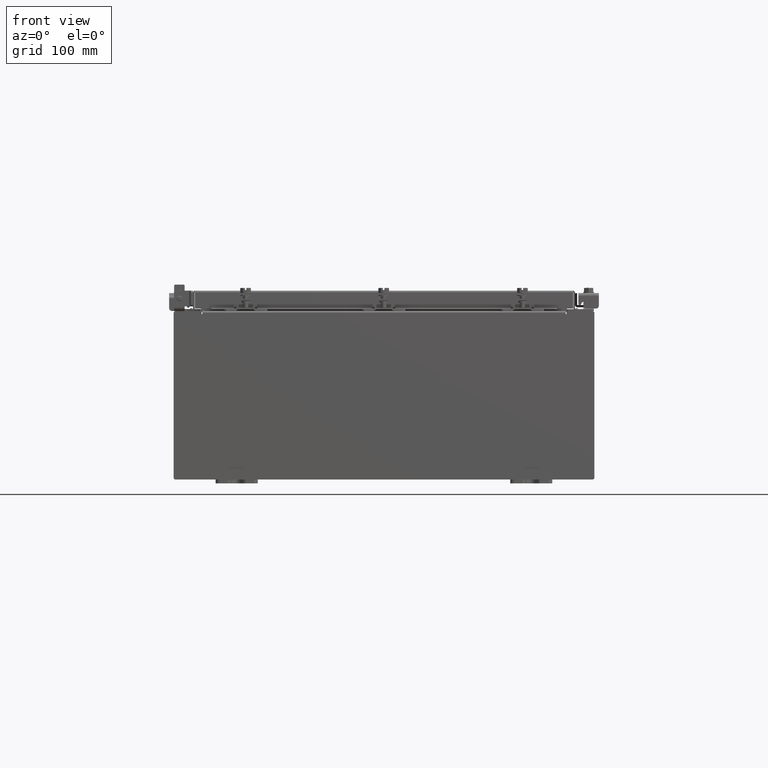
[diagram: clean part render]
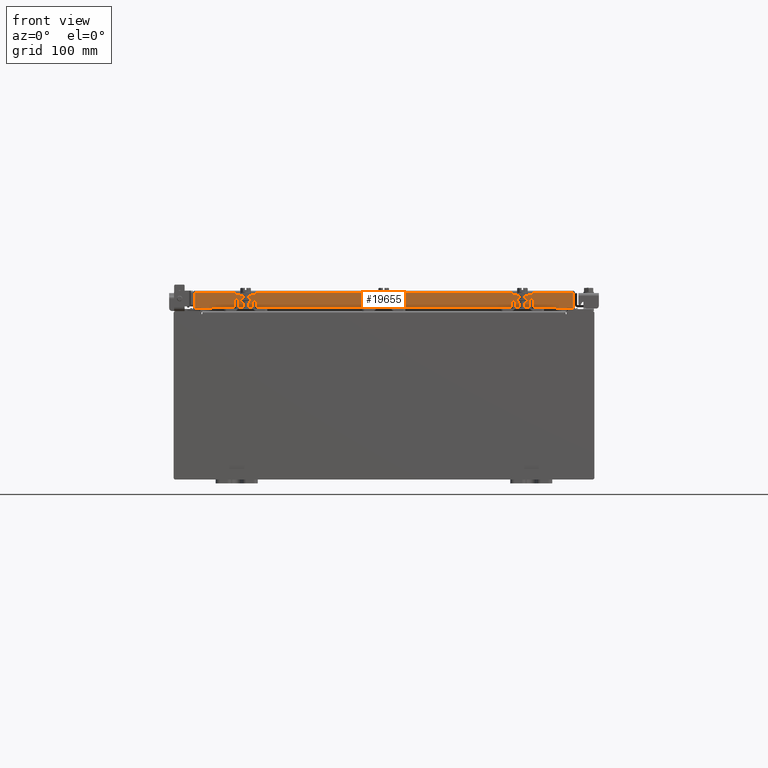
[diagram: same view with one face highlighted and labeled with its STEP entity id]
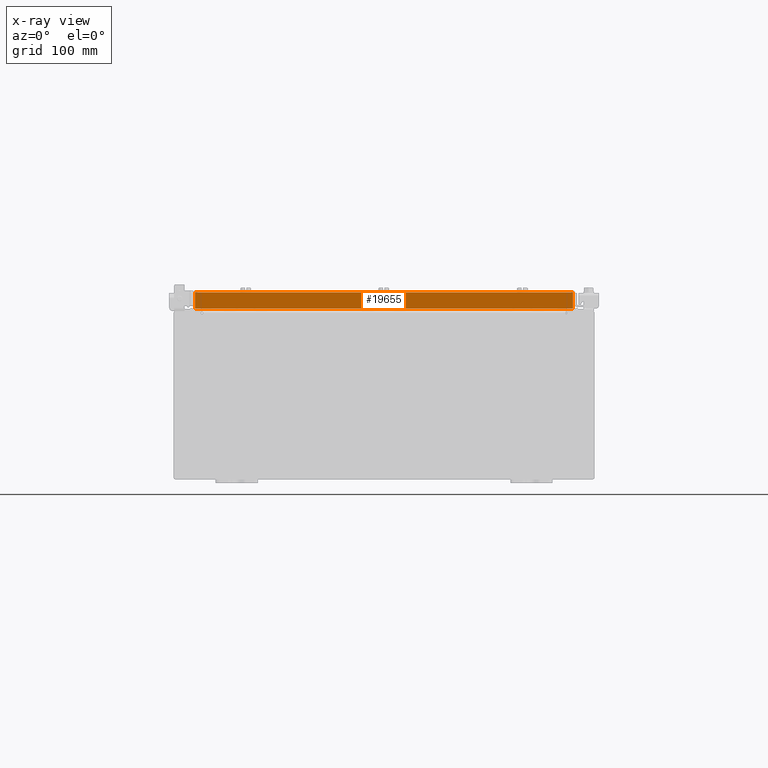
[diagram: x-ray of the same camera — body ghosted, the highlighted face saturated]
A machine part, front view. The second image highlights one B-rep face of the part: STEP entity #19655.
The next image is the same camera in x-ray: the body ghosted, the highlighted face saturated — about 0% of this face is hidden behind the body in this view.
In plain terms, the highlighted planar face has unit normal (-0, 1, -0).
Its self-contained STEP definition (entity closure, byte-faithful):
#854 = EDGE_CURVE ( 'NONE', #6649, #16607, #16195, .T. ) ;
#2404 = VERTEX_POINT ( 'NONE', #5297 ) ;
#2956 = CARTESIAN_POINT ( 'NONE',  ( 9.077999999999999400, -11.09400000000000300, -0.8499999999999996400 ) ) ;
#3293 = CARTESIAN_POINT ( 'NONE',  ( -8.239157864376267100, -11.09399999999999900, -0.8500000000000017500 ) ) ;
#3362 = LINE ( 'NONE', #9587, #21290 ) ;
#3690 = DIRECTION ( 'NONE',  ( -1.203722403024574200E-016, 1.000000000000000000, -2.818880942772360100E-015 ) ) ;
#4301 = VECTOR ( 'NONE', #22281, 39.37007874015748100 ) ;
#4406 = CARTESIAN_POINT ( 'NONE',  ( 8.239157864376267100, -11.09399999999999900, -0.8500000000000017500 ) ) ;
#5196 = DIRECTION ( 'NONE',  ( 0.0000000000000000000, -2.818880942772360100E-015, -1.000000000000000000 ) ) ;
#5297 = CARTESIAN_POINT ( 'NONE',  ( -8.989157864376267100, -11.09400000000000700, -0.8499999999999975400 ) ) ;
#5393 = PLANE ( 'NONE',  #15865 ) ;
#6485 = VECTOR ( 'NONE', #8114, 39.37007874015748100 ) ;
#6649 = VERTEX_POINT ( 'NONE', #8281 ) ;
#7921 = FACE_OUTER_BOUND ( 'NONE', #21018, .T. ) ;
#8114 = DIRECTION ( 'NONE',  ( -1.000000000000000000, -1.203722403024570700E-016, 1.203722403024570700E-016 ) ) ;
#8225 = DIRECTION ( 'NONE',  ( 1.000000000000000000, 1.203722403024567300E-016, -2.407444806049142000E-016 ) ) ;
#8281 = CARTESIAN_POINT ( 'NONE',  ( -8.989157864376267100, -11.09400000000000100, -0.08769999999999789100 ) ) ;
#9361 = EDGE_CURVE ( 'NONE', #15201, #14874, #3362, .T. ) ;
#9381 = ORIENTED_EDGE ( 'NONE', *, *, #11529, .F. ) ;
#9551 = VECTOR ( 'NONE', #5196, 39.37007874015748100 ) ;
#9587 = CARTESIAN_POINT ( 'NONE',  ( 8.239157864376268800, -11.09399999999999900, -0.8500000000000017500 ) ) ;
#9833 = CARTESIAN_POINT ( 'NONE',  ( 8.989157864376268800, -11.09400000000000100, -0.08770000000000007000 ) ) ;
#10094 = LINE ( 'NONE', #10299, #9551 ) ;
#10299 = CARTESIAN_POINT ( 'NONE',  ( -8.989157864376267100, -11.09400000000000100, 3.153347883512815000E-014 ) ) ;
#11035 = ORIENTED_EDGE ( 'NONE', *, *, #854, .F. ) ;
#11500 = CARTESIAN_POINT ( 'NONE',  ( 9.077999999999999400, -11.09400000000000300, -0.8499999999999996400 ) ) ;
#11529 = EDGE_CURVE ( 'NONE', #16607, #19173, #13529, .T. ) ;
#11543 = VECTOR ( 'NONE', #8225, 39.37007874015748100 ) ;
#11625 = LINE ( 'NONE', #11500, #6485 ) ;
#12422 = ORIENTED_EDGE ( 'NONE', *, *, #9361, .F. ) ;
#13034 = EDGE_CURVE ( 'NONE', #14874, #2404, #14525, .T. ) ;
#13529 = LINE ( 'NONE', #20484, #4301 ) ;
#13999 = VECTOR ( 'NONE', #20322, 39.37007874015748100 ) ;
#14115 = CARTESIAN_POINT ( 'NONE',  ( 1.335409633915462800E-015, -11.09400000000000100, 3.153347883512815000E-014 ) ) ;
#14525 = LINE ( 'NONE', #2956, #13999 ) ;
#14874 = VERTEX_POINT ( 'NONE', #3293 ) ;
#14920 = EDGE_CURVE ( 'NONE', #6649, #2404, #10094, .T. ) ;
#15201 = VERTEX_POINT ( 'NONE', #4406 ) ;
#15854 = DIRECTION ( 'NONE',  ( 0.0000000000000000000, 2.818880942772360100E-015, 1.000000000000000000 ) ) ;
#15865 = AXIS2_PLACEMENT_3D ( 'NONE', #14115, #3690, #15854 ) ;
#16195 = LINE ( 'NONE', #20529, #11543 ) ;
#16607 = VERTEX_POINT ( 'NONE', #9833 ) ;
#18959 = ORIENTED_EDGE ( 'NONE', *, *, #13034, .F. ) ;
#19173 = VERTEX_POINT ( 'NONE', #19834 ) ;
#19256 = ORIENTED_EDGE ( 'NONE', *, *, #21922, .F. ) ;
#19655 = ADVANCED_FACE ( 'NONE', ( #7921 ), #5393, .F. ) ;
#19834 = CARTESIAN_POINT ( 'NONE',  ( 8.989157864376268800, -11.09400000000000300, -0.8499999999999996400 ) ) ;
#20322 = DIRECTION ( 'NONE',  ( -1.000000000000000000, -1.203722403024570700E-016, 1.203722403024570700E-016 ) ) ;
#20484 = CARTESIAN_POINT ( 'NONE',  ( 8.989157864376268800, -11.09400000000000100, -0.07469999999999978000 ) ) ;
#20529 = CARTESIAN_POINT ( 'NONE',  ( 9.077999999999999400, -11.09400000000000100, -0.08770000000000224800 ) ) ;
#20817 = ORIENTED_EDGE ( 'NONE', *, *, #14920, .T. ) ;
#21018 = EDGE_LOOP ( 'NONE', ( #11035, #20817, #18959, #12422, #19256, #9381 ) ) ;
#21290 = VECTOR ( 'NONE', #21811, 39.37007874015748100 ) ;
#21811 = DIRECTION ( 'NONE',  ( -1.000000000000000000, 0.0000000000000000000, 0.0000000000000000000 ) ) ;
#21922 = EDGE_CURVE ( 'NONE', #19173, #15201, #11625, .T. ) ;
#22281 = DIRECTION ( 'NONE',  ( -0.0000000000000000000, -2.818880942772360100E-015, -1.000000000000000000 ) ) ;